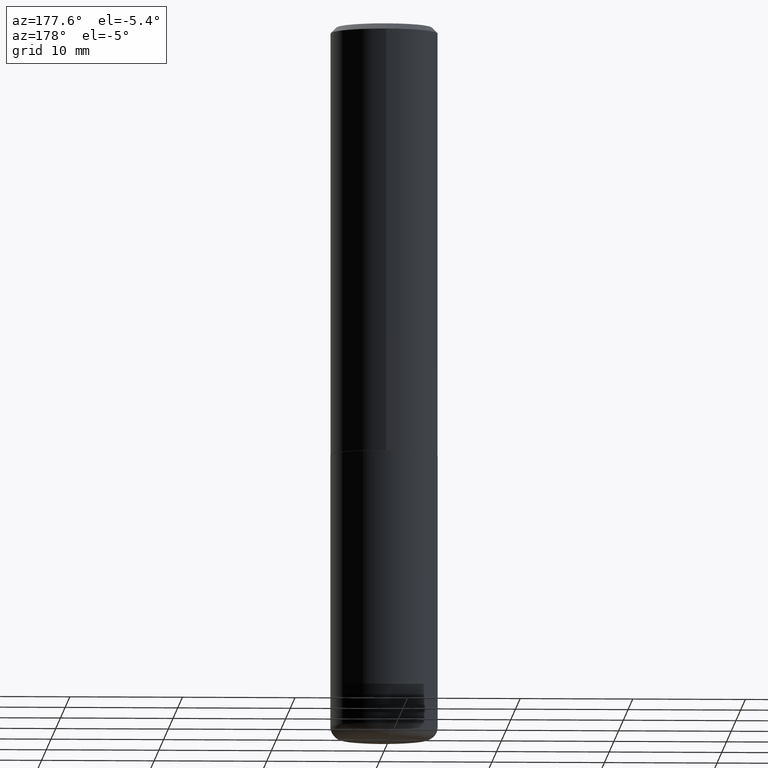
[diagram: clean part render]
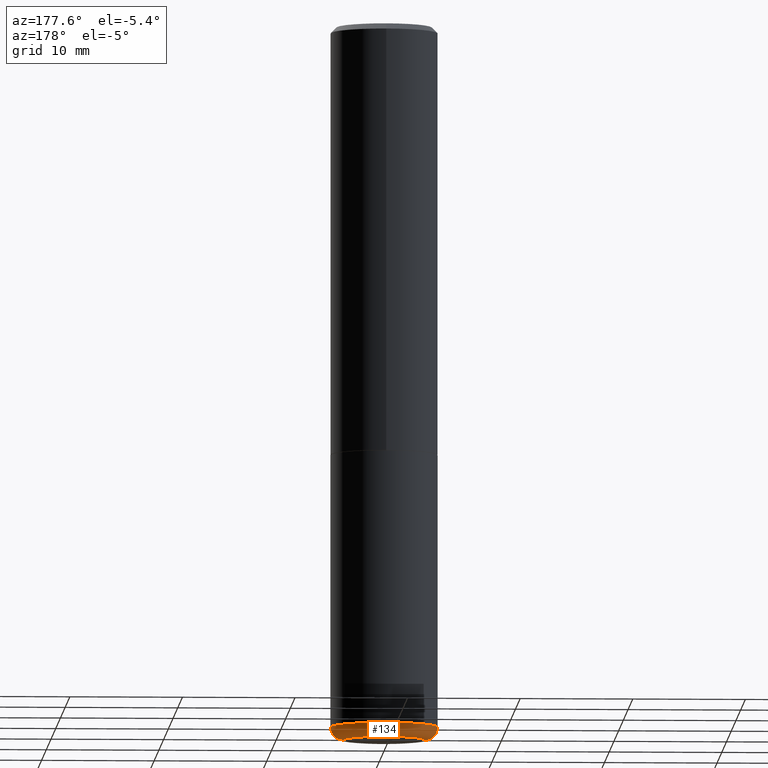
[diagram: same view with one face highlighted and labeled with its STEP entity id]
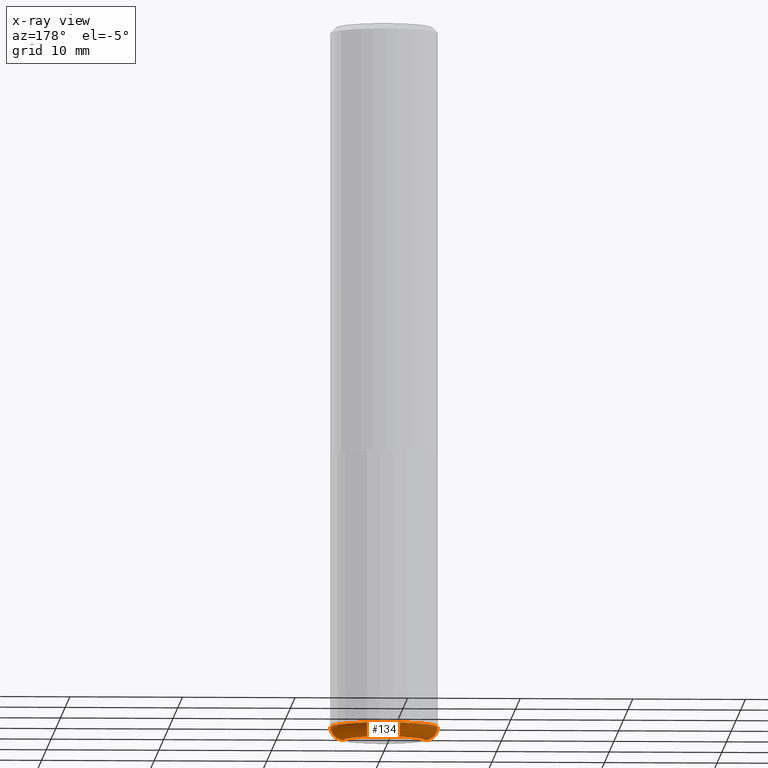
[diagram: x-ray of the same camera — body ghosted, the highlighted face saturated]
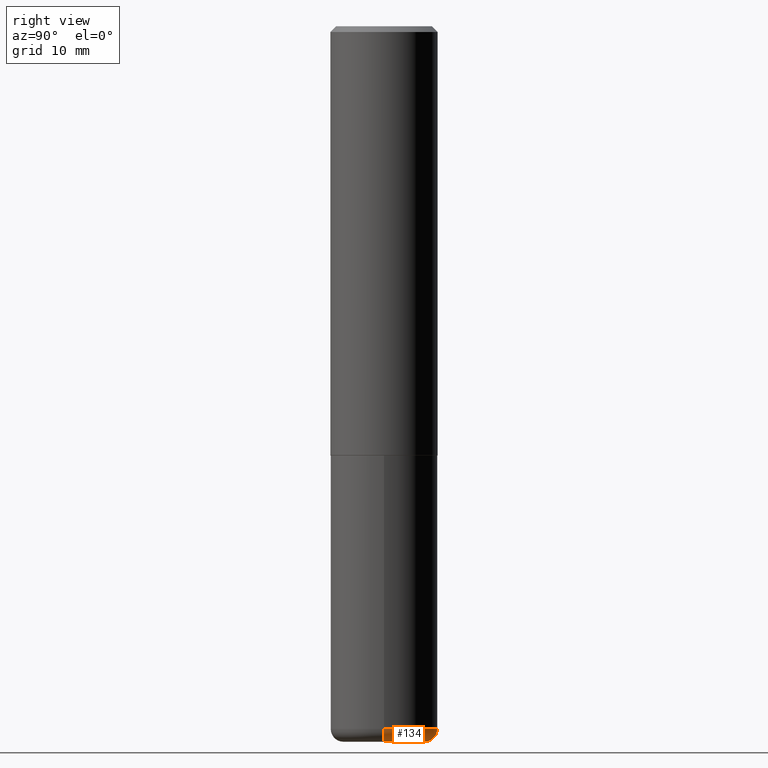
[diagram: same view with one face highlighted and labeled with its STEP entity id]
A machine part, auxiliary view. The second image highlights one B-rep face of the part: STEP entity #134.
The next image is the same camera in x-ray: the body ghosted, the highlighted face saturated — about 0% of this face is hidden behind the body in this view.
A second angle (right view) of the same face is appended — the face is thin or edge-on in the first view.
In plain terms, the highlighted toroidal blend (fillet) surface has major radius 3.6195 mm and minor (blend) radius 1.143 mm.
Its self-contained STEP definition (entity closure, byte-faithful):
#11 = VERTEX_POINT ( 'NONE', #292 ) ;
#16 = CARTESIAN_POINT ( 'NONE',  ( -0.1425000000000000155, -7.559063288401780041E-15, -2.455000000000000071 ) ) ;
#31 = EDGE_CURVE ( 'NONE', #315, #383, #266, .T. ) ;
#58 = CIRCLE ( 'NONE', #415, 0.1425000000000000155 ) ;
#59 = AXIS2_PLACEMENT_3D ( 'NONE', #297, #208, #268 ) ;
#84 = AXIS2_PLACEMENT_3D ( 'NONE', #414, #194, #88 ) ;
#88 = DIRECTION ( 'NONE',  ( 1.000000000000000000, -6.982962677686273810E-15, 0.000000000000000000 ) ) ;
#96 = CARTESIAN_POINT ( 'NONE',  ( -0.1874999999999999722, -7.239319057309735462E-15, -2.455000000000000071 ) ) ;
#118 = CARTESIAN_POINT ( 'NONE',  ( 6.113672015462842613E-29, -8.728703347107864943E-15, -2.500000000000000000 ) ) ;
#122 = ORIENTED_EDGE ( 'NONE', *, *, #253, .T. ) ;
#134 = ADVANCED_FACE ( 'NONE', ( #404 ), #300, .T. ) ;
#139 = CIRCLE ( 'NONE', #418, 0.04499999999999996364 ) ;
#154 = VERTEX_POINT ( 'NONE', #274 ) ;
#176 = CARTESIAN_POINT ( 'NONE',  ( 6.003625919184510659E-29, -8.571586686859923311E-15, -2.455000000000000071 ) ) ;
#190 = ORIENTED_EDGE ( 'NONE', *, *, #283, .F. ) ;
#194 = DIRECTION ( 'NONE',  ( -6.982962677686266711E-15, -1.000000000000000000, 3.491481338843145583E-15 ) ) ;
#204 = ORIENTED_EDGE ( 'NONE', *, *, #31, .F. ) ;
#208 = DIRECTION ( 'NONE',  ( -2.445468806185136597E-29, 3.491481338843145583E-15, 1.000000000000000000 ) ) ;
#227 = ORIENTED_EDGE ( 'NONE', *, *, #393, .T. ) ;
#242 = DIRECTION ( 'NONE',  ( 7.105427357601001859E-15, 1.000000000000000000, -3.491481338843145583E-15 ) ) ;
#253 = EDGE_CURVE ( 'NONE', #11, #383, #139, .T. ) ;
#254 = DIRECTION ( 'NONE',  ( -2.445468806185136597E-29, 3.491481338843145583E-15, 1.000000000000000000 ) ) ;
#266 = CIRCLE ( 'NONE', #59, 0.1875000000000000278 ) ;
#268 = DIRECTION ( 'NONE',  ( 1.000000000000000000, -6.982962677686266711E-15, 0.000000000000000000 ) ) ;
#270 = DIRECTION ( 'NONE',  ( -2.445468806185136597E-29, 3.491481338843145583E-15, 1.000000000000000000 ) ) ;
#274 = CARTESIAN_POINT ( 'NONE',  ( 0.1425000000000000155, -9.723775528678158264E-15, -2.500000000000000000 ) ) ;
#283 = EDGE_CURVE ( 'NONE', #154, #315, #384, .T. ) ;
#292 = CARTESIAN_POINT ( 'NONE',  ( -0.1425000000000000155, -7.477749502979727779E-15, -2.500000000000000000 ) ) ;
#297 = CARTESIAN_POINT ( 'NONE',  ( 6.003625919184510659E-29, -8.571586686859923311E-15, -2.455000000000000071 ) ) ;
#300 = TOROIDAL_SURFACE ( 'NONE', #390, 0.1425000000000000155, 0.04499999999999996364 ) ;
#310 = DIRECTION ( 'NONE',  ( 1.000000000000000000, -6.982962677686266711E-15, 0.000000000000000000 ) ) ;
#315 = VERTEX_POINT ( 'NONE', #406 ) ;
#334 = DIRECTION ( 'NONE',  ( 1.000000000000000000, -6.982962677686269077E-15, 4.883557194083113462E-29 ) ) ;
#383 = VERTEX_POINT ( 'NONE', #96 ) ;
#384 = CIRCLE ( 'NONE', #84, 0.04499999999999996364 ) ;
#390 = AXIS2_PLACEMENT_3D ( 'NONE', #176, #270, #334 ) ;
#393 = EDGE_CURVE ( 'NONE', #154, #11, #58, .T. ) ;
#402 = DIRECTION ( 'NONE',  ( -1.000000000000000000, 7.105427357600996337E-15, 0.000000000000000000 ) ) ;
#404 = FACE_OUTER_BOUND ( 'NONE', #413, .T. ) ;
#406 = CARTESIAN_POINT ( 'NONE',  ( 0.1874999999999999722, -9.880892188926098319E-15, -2.455000000000000071 ) ) ;
#413 = EDGE_LOOP ( 'NONE', ( #227, #122, #204, #190 ) ) ;
#414 = CARTESIAN_POINT ( 'NONE',  ( 0.1425000000000000155, -9.566658868430215055E-15, -2.455000000000000071 ) ) ;
#415 = AXIS2_PLACEMENT_3D ( 'NONE', #118, #254, #310 ) ;
#418 = AXIS2_PLACEMENT_3D ( 'NONE', #16, #242, #402 ) ;